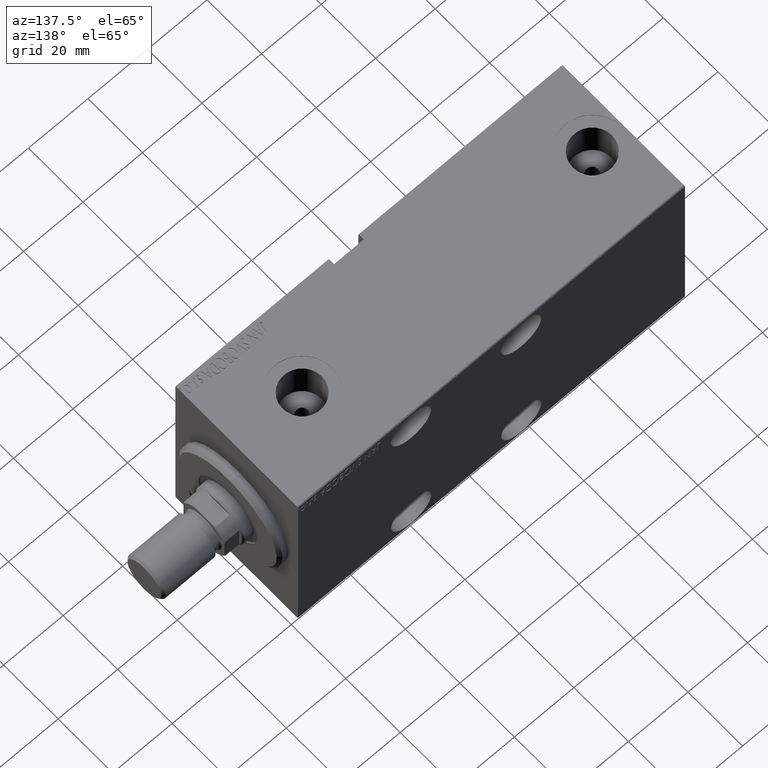
[diagram: clean part render]
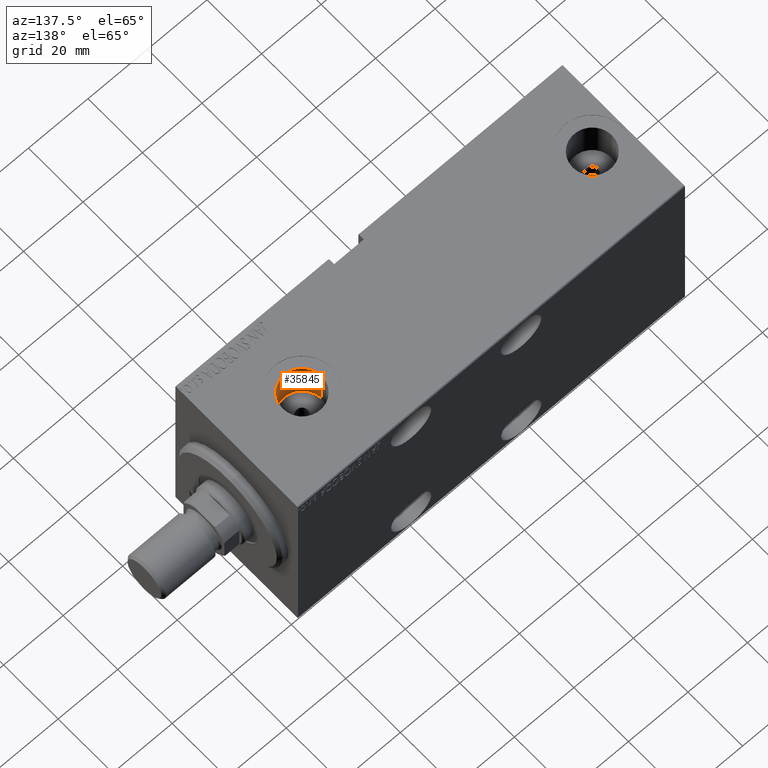
[diagram: same view with one face highlighted and labeled with its STEP entity id]
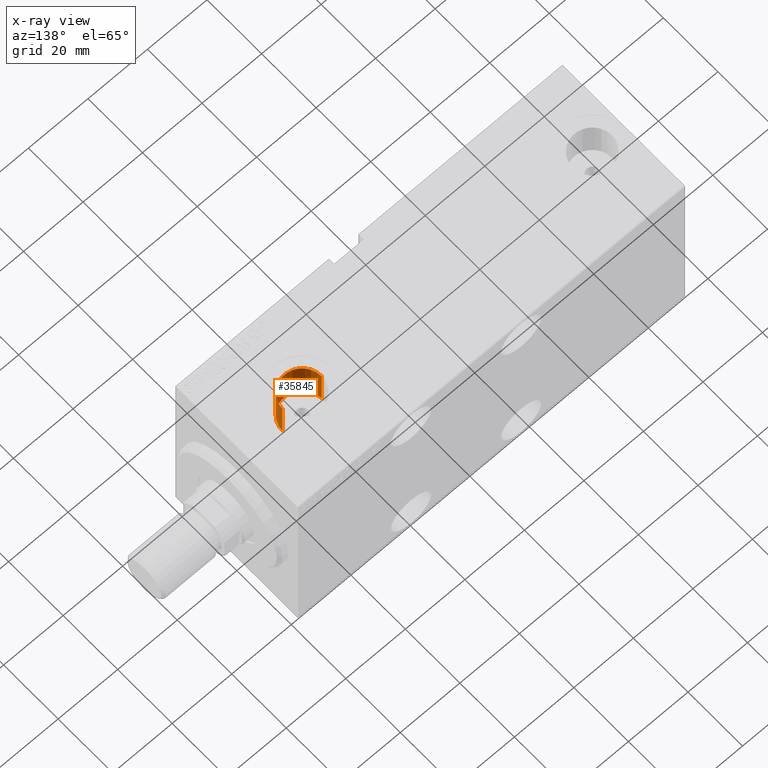
[diagram: x-ray of the same camera — body ghosted, the highlighted face saturated]
A machine part, auxiliary view. The second image highlights one B-rep face of the part: STEP entity #35845.
The next image is the same camera in x-ray: the body ghosted, the highlighted face saturated — about 0% of this face is hidden behind the body in this view.
In plain terms, the highlighted cylindrical surface (edge-blend (fillet) strip) has radius 6.58 mm, axis along (0, -0, 1).
Its self-contained STEP definition (entity closure, byte-faithful):
#1566 = DIRECTION ( 'NONE',  ( 1.000000000000000000, 0.000000000000000000, 0.000000000000000000 ) ) ;
#1841 = AXIS2_PLACEMENT_3D ( 'NONE', #41079, #36835, #13257 ) ;
#2630 = VECTOR ( 'NONE', #34458, 1000.000000000000000 ) ;
#3578 = EDGE_CURVE ( 'NONE', #34080, #22946, #21880, .T. ) ;
#6799 = VECTOR ( 'NONE', #43922, 1000.000000000000000 ) ;
#6861 = CARTESIAN_POINT ( 'NONE',  ( 22.00000000000000000, -5.011423375044110611E-15, 19.23999999999999844 ) ) ;
#7328 = EDGE_CURVE ( 'NONE', #22946, #17958, #7731, .T. ) ;
#7731 = LINE ( 'NONE', #31548, #2630 ) ;
#9035 = ORIENTED_EDGE ( 'NONE', *, *, #3578, .F. ) ;
#9663 = EDGE_LOOP ( 'NONE', ( #37966, #9035, #19415, #28649 ) ) ;
#12873 = AXIS2_PLACEMENT_3D ( 'NONE', #24230, #25574, #1566 ) ;
#13257 = DIRECTION ( 'NONE',  ( 1.000000000000000000, 0.000000000000000000, 0.000000000000000000 ) ) ;
#17958 = VERTEX_POINT ( 'NONE', #33272 ) ;
#19083 = CARTESIAN_POINT ( 'NONE',  ( 15.41999999999999993, -4.205605781205152358E-15, 19.23999999999999844 ) ) ;
#19402 = VERTEX_POINT ( 'NONE', #28878 ) ;
#19415 = ORIENTED_EDGE ( 'NONE', *, *, #22122, .T. ) ;
#20547 = DIRECTION ( 'NONE',  ( 1.000000000000000000, 0.000000000000000000, 0.000000000000000000 ) ) ;
#21880 = CIRCLE ( 'NONE', #1841, 6.579999999999999183 ) ;
#22122 = EDGE_CURVE ( 'NONE', #34080, #19402, #23494, .T. ) ;
#22946 = VERTEX_POINT ( 'NONE', #19083 ) ;
#23494 = LINE ( 'NONE', #44140, #6799 ) ;
#23577 = CARTESIAN_POINT ( 'NONE',  ( 28.57999999999999829, -5.011423375044110611E-15, 19.23999999999999844 ) ) ;
#23933 = FACE_OUTER_BOUND ( 'NONE', #9663, .T. ) ;
#24230 = CARTESIAN_POINT ( 'NONE',  ( 22.00000000000000000, -5.011423375044110611E-15, 32.39999999999999858 ) ) ;
#24989 = AXIS2_PLACEMENT_3D ( 'NONE', #6861, #34487, #20547 ) ;
#25574 = DIRECTION ( 'NONE',  ( 0.000000000000000000, 0.000000000000000000, 1.000000000000000000 ) ) ;
#28649 = ORIENTED_EDGE ( 'NONE', *, *, #38378, .T. ) ;
#28878 = CARTESIAN_POINT ( 'NONE',  ( 28.57999999999999829, -5.011423375044110611E-15, 32.39999999999999858 ) ) ;
#31548 = CARTESIAN_POINT ( 'NONE',  ( 15.41999999999999993, -4.205605781205152358E-15, 19.23999999999999844 ) ) ;
#33272 = CARTESIAN_POINT ( 'NONE',  ( 15.41999999999999993, -4.205605781205152358E-15, 32.39999999999999858 ) ) ;
#34080 = VERTEX_POINT ( 'NONE', #23577 ) ;
#34458 = DIRECTION ( 'NONE',  ( -0.000000000000000000, -0.000000000000000000, 1.000000000000000000 ) ) ;
#34487 = DIRECTION ( 'NONE',  ( -0.000000000000000000, -0.000000000000000000, 1.000000000000000000 ) ) ;
#35845 = ADVANCED_FACE ( 'NONE', ( #23933 ), #37617, .F. ) ;
#36835 = DIRECTION ( 'NONE',  ( 0.000000000000000000, 0.000000000000000000, 1.000000000000000000 ) ) ;
#37617 = CYLINDRICAL_SURFACE ( 'NONE', #24989, 6.579999999999999183 ) ;
#37966 = ORIENTED_EDGE ( 'NONE', *, *, #7328, .F. ) ;
#38378 = EDGE_CURVE ( 'NONE', #19402, #17958, #40800, .T. ) ;
#40800 = CIRCLE ( 'NONE', #12873, 6.579999999999999183 ) ;
#41079 = CARTESIAN_POINT ( 'NONE',  ( 22.00000000000000000, -5.011423375044110611E-15, 19.23999999999999844 ) ) ;
#43922 = DIRECTION ( 'NONE',  ( -0.000000000000000000, -0.000000000000000000, 1.000000000000000000 ) ) ;
#44140 = CARTESIAN_POINT ( 'NONE',  ( 28.57999999999999829, -5.011423375044110611E-15, 19.23999999999999844 ) ) ;